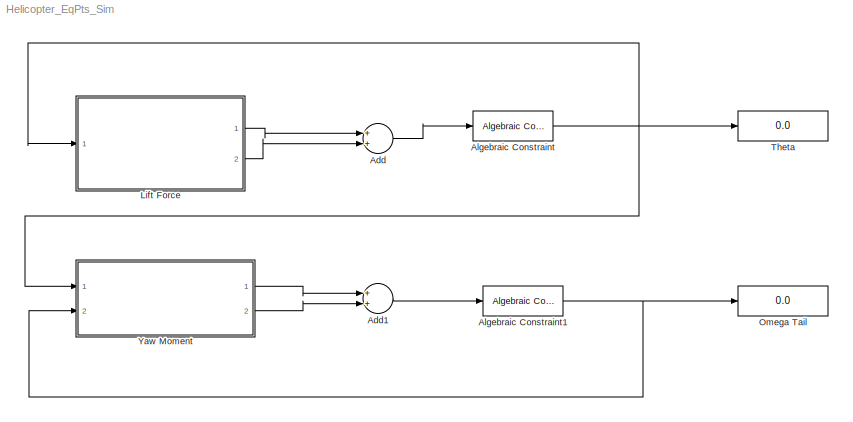
MODEL Helicopter_EqPts_Sim
KIND model
BLOCK [Sum] Add
  InputSameDT = off
  OutDataTypeStr = Inherit: Inherit via internal rule
  Ports = [2, 1]
  SID = 103
  SaturateOnIntegerOverflow = off
BLOCK [Sum] Add1
  InputSameDT = off
  OutDataTypeStr = Inherit: Inherit via internal rule
  Ports = [2, 1]
  SID = 105
  SaturateOnIntegerOverflow = off
BLOCK [Reference] Algebraic Constraint  REF=simulink/Math\nOperations/Algebraic Constraint
  Ports = [1, 1]
  SID = 78
  SourceBlock = simulink/Math\nOperations/Algebraic Constraint
  SourceType = Algebraic Constraint
  z0 = [0]
BLOCK [Reference] Algebraic Constraint1  REF=simulink/Math\nOperations/Algebraic Constraint
  Ports = [1, 1]
  SID = 100
  SourceBlock = simulink/Math\nOperations/Algebraic Constraint
  SourceType = Algebraic Constraint
  z0 = [0]
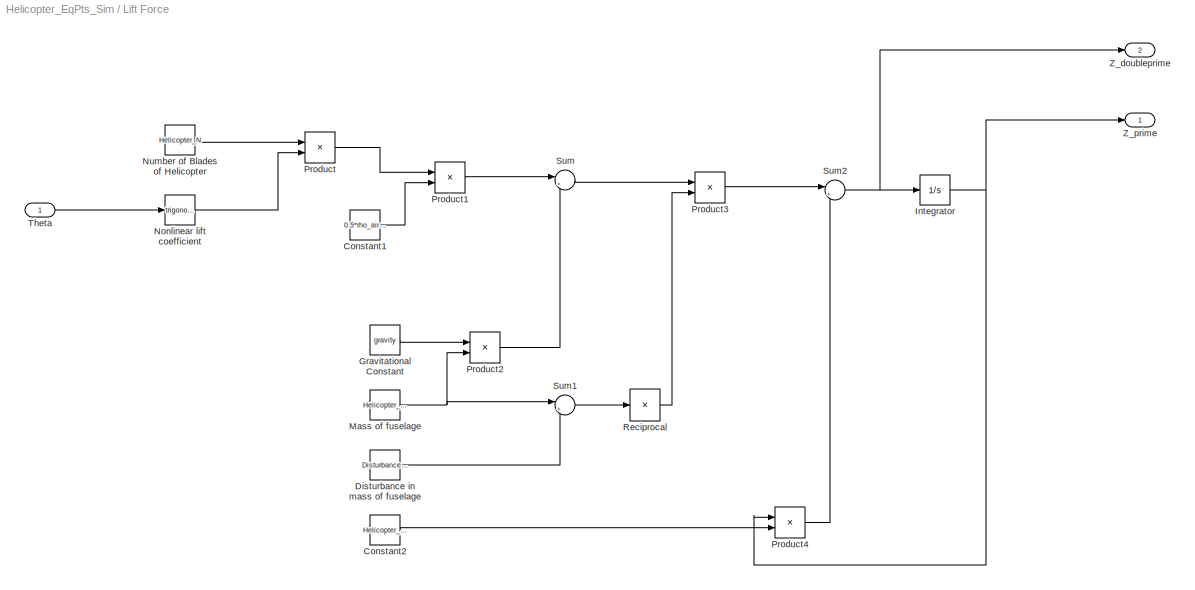
BLOCK [SubSystem] Lift Force
  Ports = [1, 2]
  RequestExecContextInheritance = off
  SID = 3
  Variant = off
BLOCK [Constant] Lift Force/Constant1
  SID = 16
  SampleTime = Simulation_DT
  Value = 0.5*rho_air*(Helicopter_mRotor_Omega*Helicopter_mRotor_Radius)^2*Helicopter_mRotor_Area
BLOCK [Constant] Lift Force/Constant2
  SID = 29
  SampleTime = Simulation_DT
  Value = Helicopter_Fuselage_DragCoefficient*0.5*rho_air*Helicopter_Fuselage_Area
BLOCK [Constant] Lift Force/Disturbance in mass of fuselage
  SID = 25
  SampleTime = Simulation_DT
  Value = Disturbance_mass
BLOCK [Constant] Lift Force/Gravitational Constant
  SID = 21
  SampleTime = Simulation_DT
  Value = gravity
BLOCK [Integrator] Lift Force/Integrator
  LimitOutput = on
  LowerSaturationLimit = 0
  Ports = [1, 1]
  SID = 32
  UpperSaturationLimit = 20
BLOCK [Constant] Lift Force/Mass of fuselage
  SID = 19
  SampleTime = Simulation_DT
  Value = Helicopter_Fuselage_Mass
BLOCK [Trigonometry] Lift Force/Nonlinear lift coefficient
  OutputSignalType = real
  Ports = [1, 1]
  SID = 15
BLOCK [Constant] Lift Force/Number of Blades of Helicopter
  SID = 13
  SampleTime = Simulation_DT
  Value = Helicopter_N
BLOCK [Product] Lift Force/Product
  InputSameDT = off
  OutDataTypeStr = Inherit: Inherit via internal rule
  Ports = [2, 1]
  RndMeth = Floor
  SID = 11
  SaturateOnIntegerOverflow = off
BLOCK [Product] Lift Force/Product1
  InputSameDT = off
  OutDataTypeStr = Inherit: Inherit via internal rule
  Ports = [2, 1]
  RndMeth = Floor
  SID = 17
  SaturateOnIntegerOverflow = off
BLOCK [Product] Lift Force/Product2
  InputSameDT = off
  OutDataTypeStr = Inherit: Inherit via internal rule
  Ports = [2, 1]
  RndMeth = Floor
  SID = 20
  SaturateOnIntegerOverflow = off
BLOCK [Product] Lift Force/Product3
  InputSameDT = off
  OutDataTypeStr = Inherit: Inherit via internal rule
  Ports = [2, 1]
  RndMeth = Floor
  SID = 23
  SaturateOnIntegerOverflow = off
BLOCK [Product] Lift Force/Product4
  InputSameDT = off
  OutDataTypeStr = Inherit: Inherit via internal rule
  Ports = [2, 1]
  RndMeth = Floor
  SID = 30
  SaturateOnIntegerOverflow = off
BLOCK [Product] Lift Force/Reciprocal
  InputSameDT = off
  Inputs = /
  OutDataTypeStr = Inherit: Inherit via internal rule
  Ports = [1, 1]
  SID = 26
BLOCK [Sum] Lift Force/Sum
  IconShape = round
  InputSameDT = off
  Inputs = |+-
  OutDataTypeStr = Inherit: Inherit via internal rule
  Ports = [2, 1]
  SID = 18
  SaturateOnIntegerOverflow = off
BLOCK [Sum] Lift Force/Sum1
  IconShape = round
  InputSameDT = off
  Inputs = |++
  OutDataTypeStr = Inherit: Inherit via internal rule
  Ports = [2, 1]
  SID = 24
  SaturateOnIntegerOverflow = off
BLOCK [Sum] Lift Force/Sum2
  IconShape = round
  InputSameDT = off
  Inputs = |++
  OutDataTypeStr = Inherit: Inherit via internal rule
  Ports = [2, 1]
  SID = 27
  SaturateOnIntegerOverflow = off
BLOCK [Inport] Lift Force/Theta
  IconDisplay = Port number
  SID = 4
BLOCK [Outport] Lift Force/Z_doubleprime
  IconDisplay = Port number
  Port = 2
  SID = 102
BLOCK [Outport] Lift Force/Z_prime
  IconDisplay = Port number
  SID = 81
BLOCK [Display] Omega Tail
  Ports = [1]
  SID = 88
BLOCK [Display] Theta
  Ports = [1]
  SID = 73
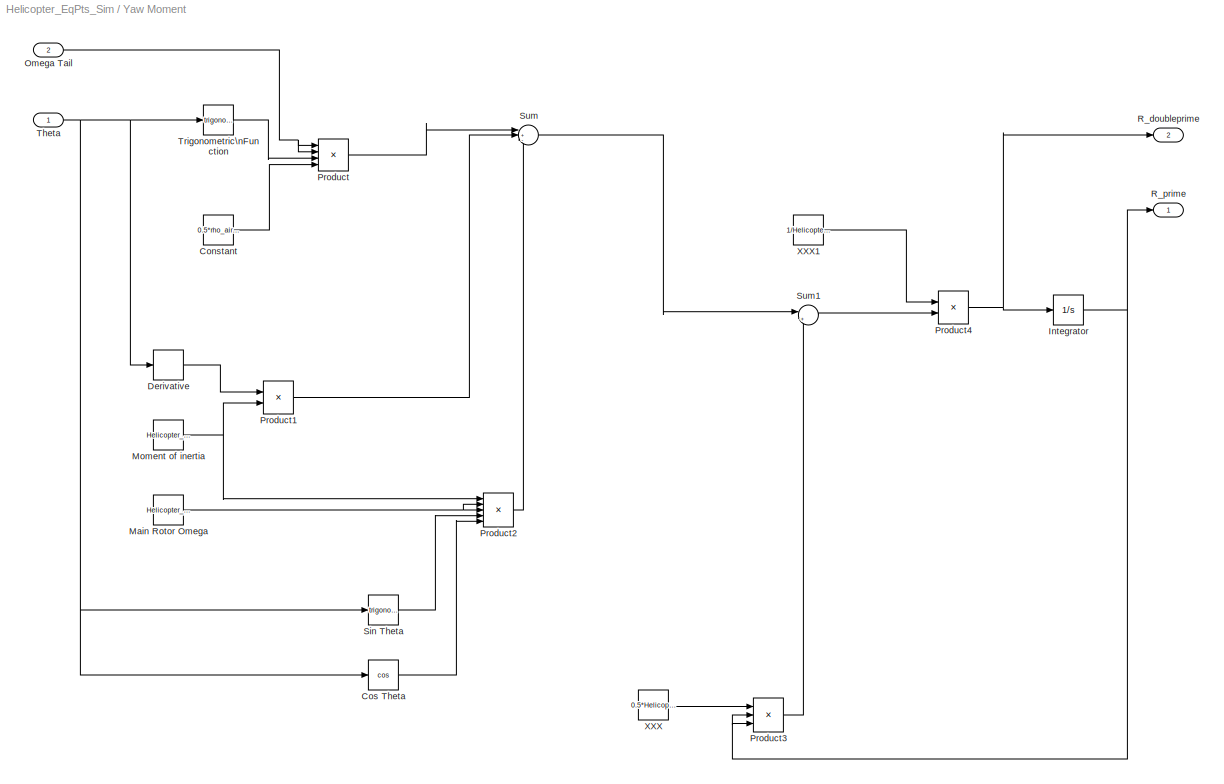
BLOCK [SubSystem] Yaw Moment
  Ports = [2, 2]
  RequestExecContextInheritance = off
  SID = 6
  Variant = off
BLOCK [Constant] Yaw Moment/Constant
  SID = 38
  SampleTime = Simulation_DT
  Value = 0.5*rho_air*Helicopter_tRotor_Radius^2*Helicopter_tRotor_Area*Helicopter_tDistance
BLOCK [Trigonometry] Yaw Moment/Cos Theta
  Operator = cos
  Ports = [1, 1]
  SID = 47
BLOCK [Derivative] Yaw Moment/Derivative
  SID = 43
BLOCK [Integrator] Yaw Moment/Integrator
  LimitOutput = on
  LowerSaturationLimit = 0
  Ports = [1, 1]
  SID = 53
  UpperSaturationLimit = 20
BLOCK [Constant] Yaw Moment/Main Rotor Omega
  SID = 45
  SampleTime = Simulation_DT
  Value = Helicopter_mRotor_Omega
BLOCK [Constant] Yaw Moment/Moment of inertia
  SID = 41
  SampleTime = Simulation_DT
  Value = Helicopter_mRotor_Ib
BLOCK [Inport] Yaw Moment/Omega Tail
  IconDisplay = Port number
  Port = 2
  SID = 10
BLOCK [Product] Yaw Moment/Product
  InputSameDT = off
  Inputs = 4
  OutDataTypeStr = Inherit: Inherit via internal rule
  Ports = [4, 1]
  RndMeth = Floor
  SID = 39
  SaturateOnIntegerOverflow = off
BLOCK [Product] Yaw Moment/Product1
  InputSameDT = off
  OutDataTypeStr = Inherit: Inherit via internal rule
  Ports = [2, 1]
  RndMeth = Floor
  SID = 42
  SaturateOnIntegerOverflow = off
BLOCK [Product] Yaw Moment/Product2
  InputSameDT = off
  Inputs = 5
  OutDataTypeStr = Inherit: Inherit via internal rule
  Ports = [5, 1]
  RndMeth = Floor
  SID = 44
  SaturateOnIntegerOverflow = off
BLOCK [Product] Yaw Moment/Product3
  InputSameDT = off
  Inputs = 3
  OutDataTypeStr = Inherit: Inherit via internal rule
  Ports = [3, 1]
  RndMeth = Floor
  SID = 49
  SaturateOnIntegerOverflow = off
BLOCK [Product] Yaw Moment/Product4
  InputSameDT = off
  OutDataTypeStr = Inherit: Inherit via internal rule
  Ports = [2, 1]
  RndMeth = Floor
  SID = 51
  SaturateOnIntegerOverflow = off
BLOCK [Outport] Yaw Moment/R_doubleprime
  IconDisplay = Port number
  Port = 2
  SID = 104
BLOCK [Outport] Yaw Moment/R_prime
  IconDisplay = Port number
  SID = 82
BLOCK [Trigonometry] Yaw Moment/Sin Theta
  Ports = [1, 1]
  SID = 46
BLOCK [Sum] Yaw Moment/Sum
  IconShape = round
  InputSameDT = off
  Inputs = |+--
  OutDataTypeStr = Inherit: Inherit via internal rule
  Ports = [3, 1]
  SID = 40
  SaturateOnIntegerOverflow = off
BLOCK [Sum] Yaw Moment/Sum1
  IconShape = round
  InputSameDT = off
  Inputs = |++
  OutDataTypeStr = Inherit: Inherit via internal rule
  Ports = [2, 1]
  SID = 48
  SaturateOnIntegerOverflow = off
BLOCK [Inport] Yaw Moment/Theta
  IconDisplay = Port number
  SID = 7
BLOCK [Trigonometry] Yaw Moment/Trigonometric\nFunction
  Ports = [1, 1]
  SID = 37
BLOCK [Constant] Yaw Moment/XXX
  SID = 50
  SampleTime = Simulation_DT
  Value = 0.5*Helicopter_Fuselage_DragCoefficient*rho_air*2*Helicopter_Fuselage_Area*Helicopter_tDistance/6
BLOCK [Constant] Yaw Moment/XXX1
  SID = 52
  SampleTime = Simulation_DT
  Value = 1/Helicopter_Fuselage_RotInertia
LINE Add1:1 -> Algebraic Constraint1:1
LINE Add:1 -> Algebraic Constraint:1
NET Algebraic Constraint1:1 -> Omega Tail:1, Yaw Moment:2
NET Algebraic Constraint:1 -> Lift Force:1, Theta:1, Yaw Moment:1
LINE Lift Force/Constant1:1 -> Lift Force/Product1:2
LINE Lift Force/Constant2:1 -> Lift Force/Product4:2
LINE Lift Force/Disturbance in mass of fuselage:1 -> Lift Force/Sum1:2
LINE Lift Force/Gravitational Constant:1 -> Lift Force/Product2:1
NET Lift Force/Integrator:1 -> Lift Force/Product4:1, Lift Force/Z_prime:1
NET Lift Force/Mass of fuselage:1 -> Lift Force/Product2:2, Lift Force/Sum1:1
LINE Lift Force/Nonlinear lift coefficient:1 -> Lift Force/Product:2
LINE Lift Force/Number of Blades of Helicopter:1 -> Lift Force/Product:1
LINE Lift Force/Product1:1 -> Lift Force/Sum:1
LINE Lift Force/Product2:1 -> Lift Force/Sum:2
LINE Lift Force/Product3:1 -> Lift Force/Sum2:1
LINE Lift Force/Product4:1 -> Lift Force/Sum2:2
LINE Lift Force/Product:1 -> Lift Force/Product1:1
LINE Lift Force/Reciprocal:1 -> Lift Force/Product3:2
LINE Lift Force/Sum1:1 -> Lift Force/Reciprocal:1
NET Lift Force/Sum2:1 -> Lift Force/Integrator:1, Lift Force/Z_doubleprime:1
LINE Lift Force/Sum:1 -> Lift Force/Product3:1
LINE Lift Force/Theta:1 -> Lift Force/Nonlinear lift coefficient:1
LINE Lift Force:1 -> Add:1
LINE Lift Force:2 -> Add:2
LINE Yaw Moment/Constant:1 -> Yaw Moment/Product:4
LINE Yaw Moment/Cos Theta:1 -> Yaw Moment/Product2:5
LINE Yaw Moment/Derivative:1 -> Yaw Moment/Product1:1
NET Yaw Moment/Integrator:1 -> Yaw Moment/Product3:2, Yaw Moment/Product3:3, Yaw Moment/R_prime:1
NET Yaw Moment/Main Rotor Omega:1 -> Yaw Moment/Product2:2, Yaw Moment/Product2:3
NET Yaw Moment/Moment of inertia:1 -> Yaw Moment/Product1:2, Yaw Moment/Product2:1
NET Yaw Moment/Omega Tail:1 -> Yaw Moment/Product:1, Yaw Moment/Product:2
LINE Yaw Moment/Product1:1 -> Yaw Moment/Sum:2
LINE Yaw Moment/Product2:1 -> Yaw Moment/Sum:3
LINE Yaw Moment/Product3:1 -> Yaw Moment/Sum1:2
NET Yaw Moment/Product4:1 -> Yaw Moment/Integrator:1, Yaw Moment/R_doubleprime:1
LINE Yaw Moment/Product:1 -> Yaw Moment/Sum:1
LINE Yaw Moment/Sin Theta:1 -> Yaw Moment/Product2:4
LINE Yaw Moment/Sum1:1 -> Yaw Moment/Product4:2
LINE Yaw Moment/Sum:1 -> Yaw Moment/Sum1:1
NET Yaw Moment/Theta:1 -> Yaw Moment/Cos Theta:1, Yaw Moment/Derivative:1, Yaw Moment/Sin Theta:1, Yaw Moment/Trigonometric\nFunction:1
LINE Yaw Moment/Trigonometric\nFunction:1 -> Yaw Moment/Product:3
LINE Yaw Moment/XXX1:1 -> Yaw Moment/Product4:1
LINE Yaw Moment/XXX:1 -> Yaw Moment/Product3:1
LINE Yaw Moment:1 -> Add1:1
LINE Yaw Moment:2 -> Add1:2
note: NET lines group one-source signal fan-out (src -> all destinations, sorted); 1:1 wires keep LINE
